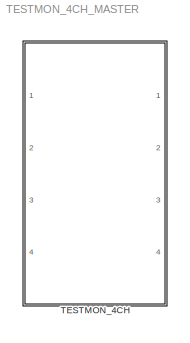
MODEL TESTMON_4CH_MASTER
KIND library
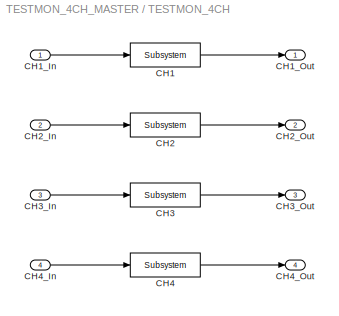
BLOCK [SubSystem] TESTMON_4CH
  Ports = [4, 4]
  RequestExecContextInheritance = off
  SID = 101
BLOCK [Reference] TESTMON_4CH/CH1  REF=cdsFilt/Subsystem
  AttributesFormatString = %<Tag>
  Description = Purpose:                                                                                                                                                                                                                                  \nStandard CDS IIR filter module.                                                                                                                                     ...<+1302ch>  <repeated x4 — deduplicated; at blocks: CH1, CH2, CH3, CH4>
  Ports = [1, 1]
  SID = 109
  SourceBlock = cdsFilt/Subsystem
  SourceType = SubSystem
  Tag = cdsFilt
BLOCK [Inport] TESTMON_4CH/CH1_In
  IconDisplay = Port number
  SID = 1
BLOCK [Outport] TESTMON_4CH/CH1_Out
  IconDisplay = Port number
  SID = 104
BLOCK [Reference] TESTMON_4CH/CH2  REF=cdsFilt/Subsystem
  AttributesFormatString = %<Tag>
  Ports = [1, 1]
  SID = 110
  SourceBlock = cdsFilt/Subsystem
  SourceType = SubSystem
  Tag = cdsFilt
BLOCK [Inport] TESTMON_4CH/CH2_In
  IconDisplay = Port number
  Port = 2
  SID = 2
BLOCK [Outport] TESTMON_4CH/CH2_Out
  IconDisplay = Port number
  Port = 2
  SID = 105
BLOCK [Reference] TESTMON_4CH/CH3  REF=cdsFilt/Subsystem
  AttributesFormatString = %<Tag>
  Ports = [1, 1]
  SID = 111
  SourceBlock = cdsFilt/Subsystem
  SourceType = SubSystem
  Tag = cdsFilt
BLOCK [Inport] TESTMON_4CH/CH3_In
  IconDisplay = Port number
  Port = 3
  SID = 3
BLOCK [Outport] TESTMON_4CH/CH3_Out
  IconDisplay = Port number
  Port = 3
  SID = 106
BLOCK [Reference] TESTMON_4CH/CH4  REF=cdsFilt/Subsystem
  AttributesFormatString = %<Tag>
  Ports = [1, 1]
  SID = 112
  SourceBlock = cdsFilt/Subsystem
  SourceType = SubSystem
  Tag = cdsFilt
BLOCK [Inport] TESTMON_4CH/CH4_In
  IconDisplay = Port number
  Port = 4
  SID = 4
BLOCK [Outport] TESTMON_4CH/CH4_Out
  IconDisplay = Port number
  Port = 4
  SID = 107
LINE TESTMON_4CH/CH1:1 -> TESTMON_4CH/CH1_Out:1
LINE TESTMON_4CH/CH1_In:1 -> TESTMON_4CH/CH1:1
LINE TESTMON_4CH/CH2:1 -> TESTMON_4CH/CH2_Out:1
LINE TESTMON_4CH/CH2_In:1 -> TESTMON_4CH/CH2:1
LINE TESTMON_4CH/CH3:1 -> TESTMON_4CH/CH3_Out:1
LINE TESTMON_4CH/CH3_In:1 -> TESTMON_4CH/CH3:1
LINE TESTMON_4CH/CH4:1 -> TESTMON_4CH/CH4_Out:1
LINE TESTMON_4CH/CH4_In:1 -> TESTMON_4CH/CH4:1
